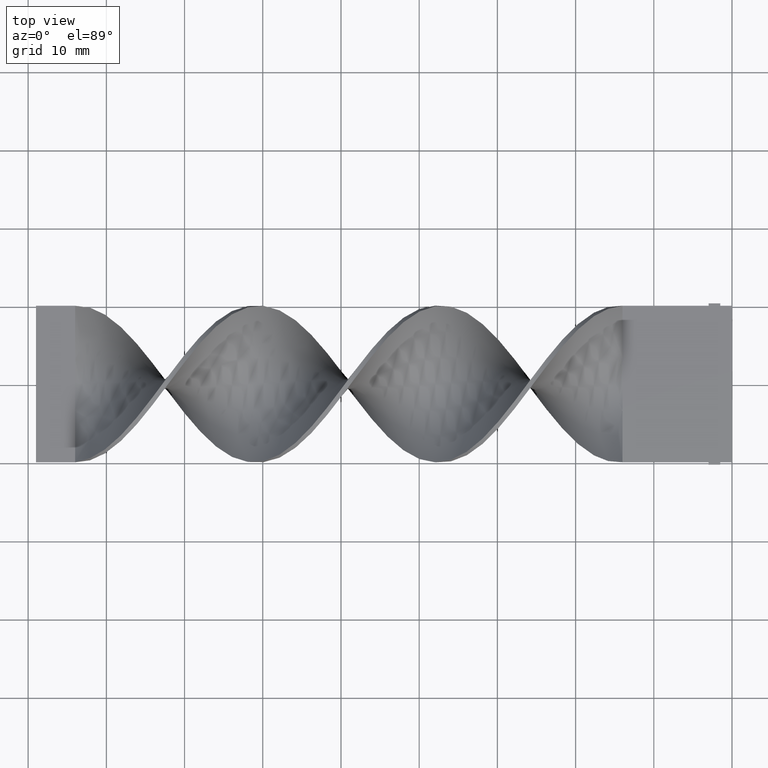
[diagram: clean part render]
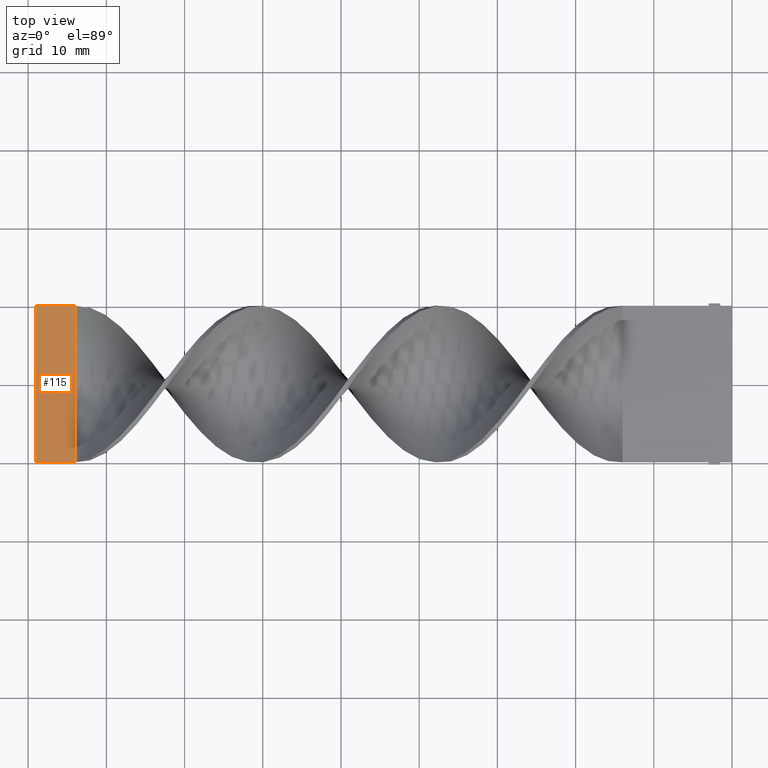
[diagram: same view with one face highlighted and labeled with its STEP entity id]
A machine part, top view. The second image highlights one B-rep face of the part: STEP entity #115.
In plain terms, the highlighted planar face has unit normal (0, -0, -1).
Its self-contained STEP definition (entity closure, byte-faithful):
#73 = CARTESIAN_POINT ( 'NONE',  ( -89.00000000000001421, 9.999999999999998224, 0.4999999999999988343 ) ) ;
#76 = VERTEX_POINT ( 'NONE', #986 ) ;
#115 = ADVANCED_FACE ( 'NONE', ( #399 ), #1393, .F. ) ;
#175 = DIRECTION ( 'NONE',  ( 1.000000000000000000, -0.000000000000000000, -0.000000000000000000 ) ) ;
#187 = VECTOR ( 'NONE', #175, 1000.000000000000000 ) ;
#190 = EDGE_CURVE ( 'NONE', #868, #588, #872, .T. ) ;
#212 = ORIENTED_EDGE ( 'NONE', *, *, #1439, .T. ) ;
#258 = CARTESIAN_POINT ( 'NONE',  ( -89.00000000000001421, -10.00000000000000178, 0.5000000000000012212 ) ) ;
#318 = CARTESIAN_POINT ( 'NONE',  ( -84.00000000000000000, 9.999999999999998224, 0.4999999999999988343 ) ) ;
#399 = FACE_OUTER_BOUND ( 'NONE', #1574, .T. ) ;
#404 = B_SPLINE_CURVE_WITH_KNOTS ( 'NONE', 3,
 ( #559, #1328, #436, #1309 ),
 .UNSPECIFIED., .F., .F.,
 ( 4, 4 ),
 ( 0.000000000000000000, 1.000000000000000000 ),
 .UNSPECIFIED. ) ;
#436 = CARTESIAN_POINT ( 'NONE',  ( -84.00000000000000000, 3.333333333333332149, 0.4999999999999995559 ) ) ;
#452 = CARTESIAN_POINT ( 'NONE',  ( -84.00000000000000000, -10.00000000000000178, 0.5000000000000012212 ) ) ;
#457 = ORIENTED_EDGE ( 'NONE', *, *, #190, .T. ) ;
#559 = CARTESIAN_POINT ( 'NONE',  ( -84.00000000000000000, -10.00000000000000178, 0.5000000000000012212 ) ) ;
#564 = VERTEX_POINT ( 'NONE', #318 ) ;
#588 = VERTEX_POINT ( 'NONE', #452 ) ;
#623 = AXIS2_PLACEMENT_3D ( 'NONE', #1421, #797, #1283 ) ;
#797 = DIRECTION ( 'NONE',  ( 0.000000000000000000, -1.192622389734054877E-16, -1.000000000000000000 ) ) ;
#868 = VERTEX_POINT ( 'NONE', #1035 ) ;
#872 = LINE ( 'NONE', #258, #1305 ) ;
#931 = DIRECTION ( 'NONE',  ( 0.000000000000000000, 1.000000000000000000, -1.192622389734054877E-16 ) ) ;
#986 = CARTESIAN_POINT ( 'NONE',  ( -89.00000000000001421, 9.999999999999998224, 0.4999999999999988343 ) ) ;
#1014 = ORIENTED_EDGE ( 'NONE', *, *, #1218, .F. ) ;
#1035 = CARTESIAN_POINT ( 'NONE',  ( -89.00000000000001421, -10.00000000000000178, 0.5000000000000012212 ) ) ;
#1050 = CARTESIAN_POINT ( 'NONE',  ( -89.00000000000001421, -10.00000000000000178, 0.5000000000000012212 ) ) ;
#1218 = EDGE_CURVE ( 'NONE', #868, #76, #1315, .T. ) ;
#1240 = VECTOR ( 'NONE', #931, 1000.000000000000000 ) ;
#1283 = DIRECTION ( 'NONE',  ( 0.000000000000000000, 1.000000000000000000, -1.192622389734054877E-16 ) ) ;
#1305 = VECTOR ( 'NONE', #1359, 1000.000000000000000 ) ;
#1309 = CARTESIAN_POINT ( 'NONE',  ( -84.00000000000000000, 9.999999999999998224, 0.4999999999999988343 ) ) ;
#1315 = LINE ( 'NONE', #1050, #1240 ) ;
#1318 = LINE ( 'NONE', #73, #187 ) ;
#1328 = CARTESIAN_POINT ( 'NONE',  ( -84.00000000000000000, -3.333333333333335702, 0.5000000000000004441 ) ) ;
#1343 = EDGE_CURVE ( 'NONE', #76, #564, #1318, .T. ) ;
#1359 = DIRECTION ( 'NONE',  ( 1.000000000000000000, -0.000000000000000000, -0.000000000000000000 ) ) ;
#1393 = PLANE ( 'NONE',  #623 ) ;
#1409 = ORIENTED_EDGE ( 'NONE', *, *, #1343, .F. ) ;
#1421 = CARTESIAN_POINT ( 'NONE',  ( -89.00000000000001421, -10.00000000000000178, 0.5000000000000012212 ) ) ;
#1439 = EDGE_CURVE ( 'NONE', #588, #564, #404, .T. ) ;
#1574 = EDGE_LOOP ( 'NONE', ( #212, #1409, #1014, #457 ) ) ;